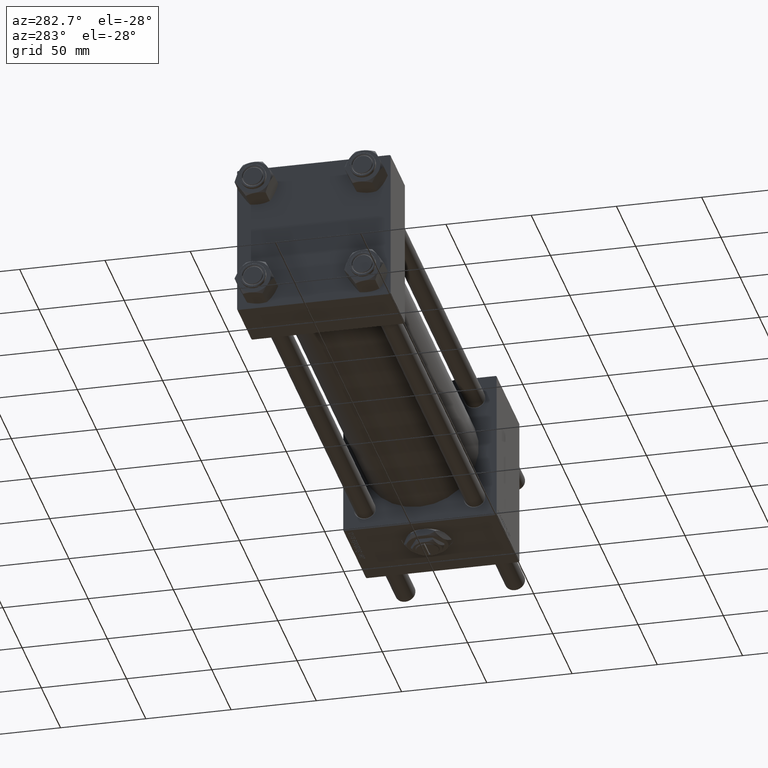
[diagram: clean part render]
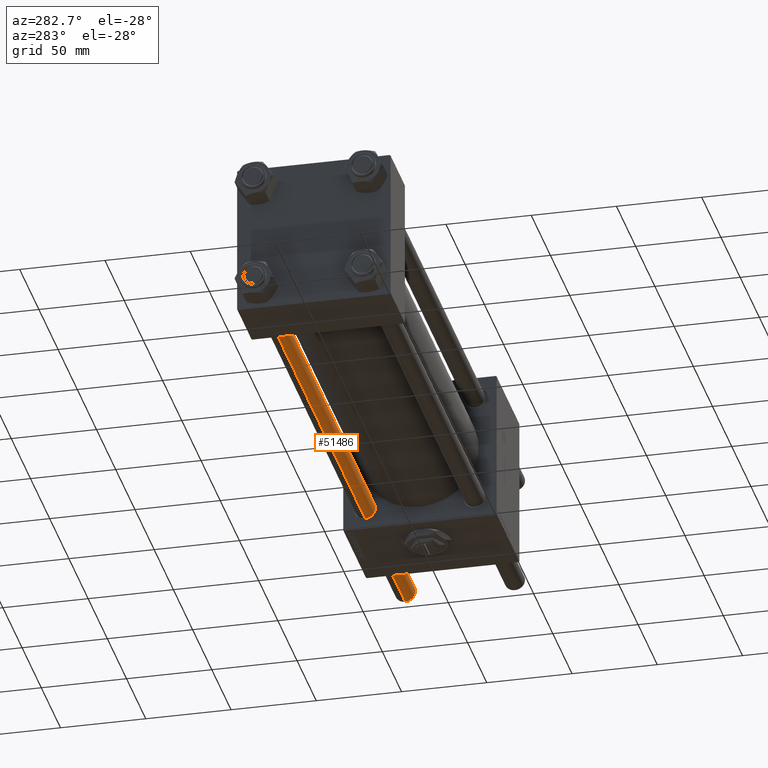
[diagram: same view with one face highlighted and labeled with its STEP entity id]
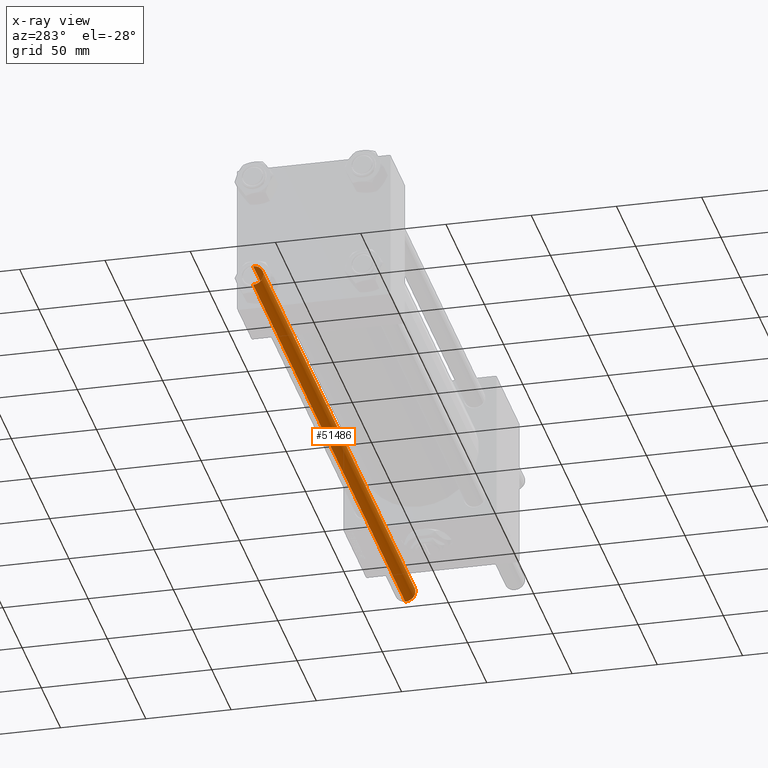
[diagram: x-ray of the same camera — body ghosted, the highlighted face saturated]
A machine part, auxiliary view. The second image highlights one B-rep face of the part: STEP entity #51486.
The next image is the same camera in x-ray: the body ghosted, the highlighted face saturated — about 0% of this face is hidden behind the body in this view.
In plain terms, the highlighted cylindrical surface (edge-blend (fillet) strip) has radius 6 mm, axis along (-1, -0, 0).
Its self-contained STEP definition (entity closure, byte-faithful):
#784 = CARTESIAN_POINT ( 'NONE',  ( 0.000000000000000000, 0.000000000000000000, 397.0000000000000000 ) ) ;
#1312 = CARTESIAN_POINT ( 'NONE',  ( -6.000000000000000888, 0.000000000000000000, 397.0000000000000000 ) ) ;
#1709 = VERTEX_POINT ( 'NONE', #40436 ) ;
#6479 = EDGE_LOOP ( 'NONE', ( #46974, #39209, #54920, #42263 ) ) ;
#7370 = CARTESIAN_POINT ( 'NONE',  ( -6.000000000000000888, 0.000000000000000000, 396.5000000000000568 ) ) ;
#12093 = DIRECTION ( 'NONE',  ( 1.000000000000000000, 0.000000000000000000, 0.000000000000000000 ) ) ;
#13579 = VECTOR ( 'NONE', #24403, 1000.000000000000000 ) ;
#14952 = CARTESIAN_POINT ( 'NONE',  ( 6.000000000000000888, 7.347880794884120722E-16, 397.0000000000000000 ) ) ;
#19556 = VERTEX_POINT ( 'NONE', #28174 ) ;
#22041 = CIRCLE ( 'NONE', #37152, 6.000000000000000888 ) ;
#23306 = CIRCLE ( 'NONE', #56300, 6.000000000000000888 ) ;
#24357 = DIRECTION ( 'NONE',  ( 0.000000000000000000, 0.000000000000000000, -1.000000000000000000 ) ) ;
#24403 = DIRECTION ( 'NONE',  ( -0.000000000000000000, -0.000000000000000000, -1.000000000000000000 ) ) ;
#25996 = VERTEX_POINT ( 'NONE', #7370 ) ;
#26010 = EDGE_CURVE ( 'NONE', #42916, #1709, #22041, .T. ) ;
#27711 = DIRECTION ( 'NONE',  ( -1.000000000000000000, 0.000000000000000000, 0.000000000000000000 ) ) ;
#28174 = CARTESIAN_POINT ( 'NONE',  ( 6.000000000000000888, 7.347880794884120722E-16, 396.5000000000000568 ) ) ;
#29073 = CARTESIAN_POINT ( 'NONE',  ( 0.000000000000000000, 0.000000000000000000, 396.5000000000000568 ) ) ;
#29121 = LINE ( 'NONE', #1312, #13579 ) ;
#32137 = EDGE_CURVE ( 'NONE', #25996, #42916, #29121, .T. ) ;
#33011 = DIRECTION ( 'NONE',  ( -0.000000000000000000, -0.000000000000000000, -1.000000000000000000 ) ) ;
#34289 = CARTESIAN_POINT ( 'NONE',  ( 0.000000000000000000, 0.000000000000000000, 0.5000000000000559552 ) ) ;
#36881 = DIRECTION ( 'NONE',  ( -0.000000000000000000, -0.000000000000000000, -1.000000000000000000 ) ) ;
#37152 = AXIS2_PLACEMENT_3D ( 'NONE', #34289, #47024, #12093 ) ;
#39209 = ORIENTED_EDGE ( 'NONE', *, *, #40853, .T. ) ;
#40436 = CARTESIAN_POINT ( 'NONE',  ( 6.000000000000000888, 7.347880794884120722E-16, 0.5000000000000559552 ) ) ;
#40853 = EDGE_CURVE ( 'NONE', #19556, #25996, #23306, .T. ) ;
#42263 = ORIENTED_EDGE ( 'NONE', *, *, #26010, .T. ) ;
#42916 = VERTEX_POINT ( 'NONE', #55764 ) ;
#45230 = AXIS2_PLACEMENT_3D ( 'NONE', #784, #36881, #27711 ) ;
#46974 = ORIENTED_EDGE ( 'NONE', *, *, #51612, .F. ) ;
#47024 = DIRECTION ( 'NONE',  ( -0.000000000000000000, -0.000000000000000000, 1.000000000000000000 ) ) ;
#47106 = VECTOR ( 'NONE', #33011, 1000.000000000000000 ) ;
#47406 = DIRECTION ( 'NONE',  ( 1.000000000000000000, 0.000000000000000000, 0.000000000000000000 ) ) ;
#51486 = ADVANCED_FACE ( 'NONE', ( #53710 ), #54579, .T. ) ;
#51612 = EDGE_CURVE ( 'NONE', #19556, #1709, #55441, .T. ) ;
#53710 = FACE_OUTER_BOUND ( 'NONE', #6479, .T. ) ;
#54579 = CYLINDRICAL_SURFACE ( 'NONE', #45230, 6.000000000000000888 ) ;
#54920 = ORIENTED_EDGE ( 'NONE', *, *, #32137, .T. ) ;
#55441 = LINE ( 'NONE', #14952, #47106 ) ;
#55764 = CARTESIAN_POINT ( 'NONE',  ( -6.000000000000000888, 0.000000000000000000, 0.5000000000000559552 ) ) ;
#56300 = AXIS2_PLACEMENT_3D ( 'NONE', #29073, #24357, #47406 ) ;